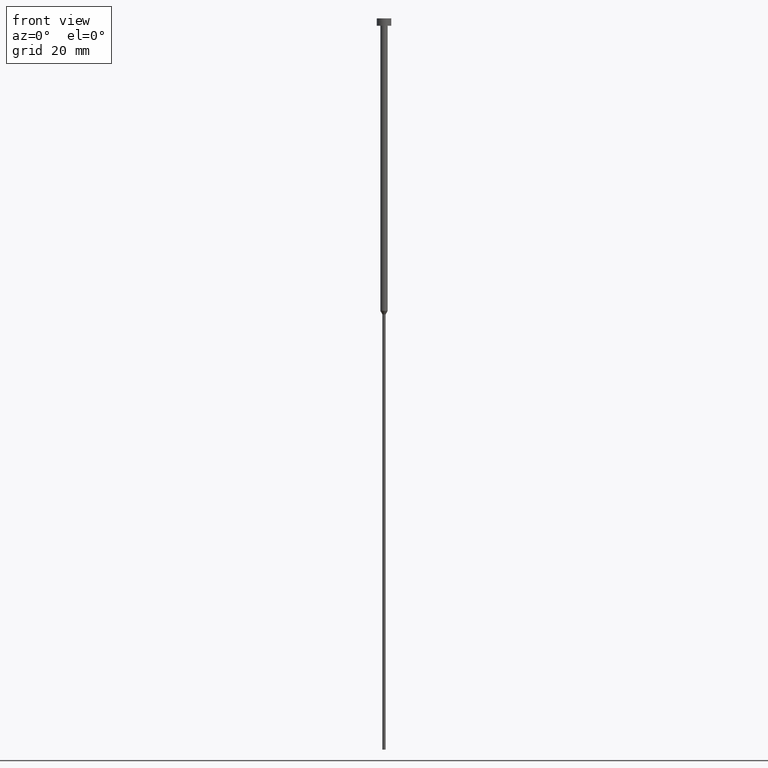
[diagram: clean part render]
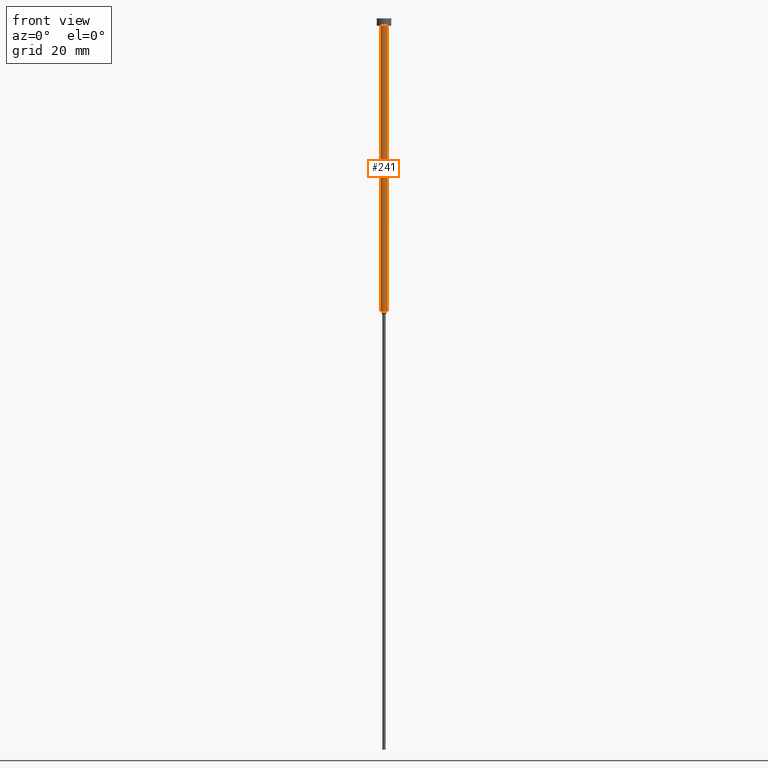
[diagram: same view with one face highlighted and labeled with its STEP entity id]
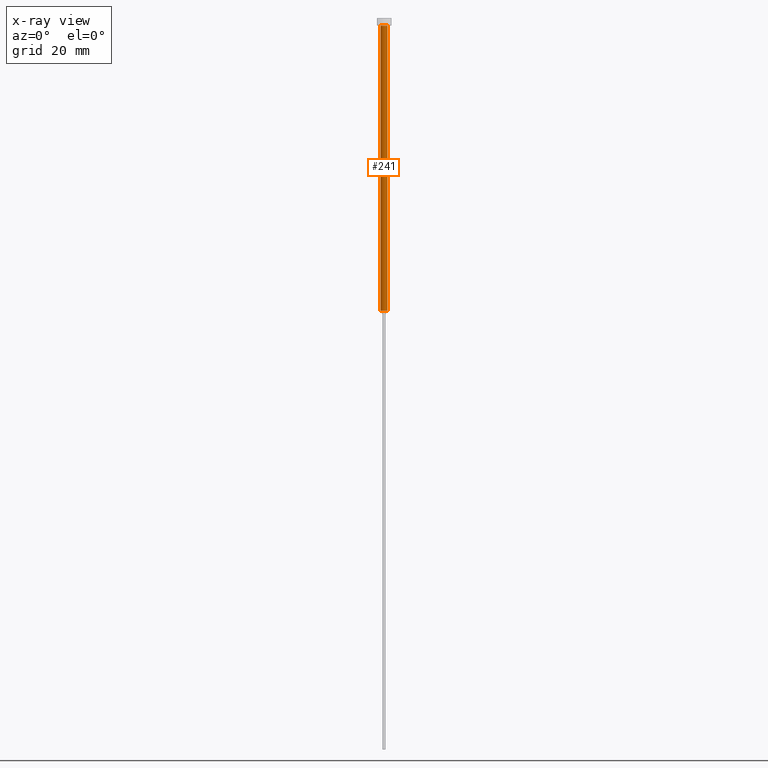
[diagram: x-ray of the same camera — body ghosted, the highlighted face saturated]
A machine part, front view. The second image highlights one B-rep face of the part: STEP entity #241.
The next image is the same camera in x-ray: the body ghosted, the highlighted face saturated — about 0% of this face is hidden behind the body in this view.
In plain terms, the highlighted cylindrical surface (edge-blend (fillet) strip) has radius 1 mm, axis along (-0, -0, 1).
Its self-contained STEP definition (entity closure, byte-faithful):
#2 = DIRECTION ( 'NONE',  ( -0.000000000000000000, -0.000000000000000000, 1.000000000000000000 ) ) ;
#11 = EDGE_CURVE ( 'NONE', #88, #261, #38, .T. ) ;
#15 = DIRECTION ( 'NONE',  ( -0.000000000000000000, -0.000000000000000000, 1.000000000000000000 ) ) ;
#19 = AXIS2_PLACEMENT_3D ( 'NONE', #167, #42, #145 ) ;
#31 = ORIENTED_EDGE ( 'NONE', *, *, #68, .T. ) ;
#38 = LINE ( 'NONE', #115, #67 ) ;
#42 = DIRECTION ( 'NONE',  ( -0.000000000000000000, -0.000000000000000000, 1.000000000000000000 ) ) ;
#43 = CARTESIAN_POINT ( 'NONE',  ( 0.000000000000000000, 0.000000000000000000, -2.000000000000000444 ) ) ;
#44 = EDGE_CURVE ( 'NONE', #61, #209, #252, .T. ) ;
#49 = CARTESIAN_POINT ( 'NONE',  ( 1.000000000000003109, 0.000000000000000000, -80.00000000000000000 ) ) ;
#61 = VERTEX_POINT ( 'NONE', #230 ) ;
#67 = VECTOR ( 'NONE', #2, 1000.000000000000000 ) ;
#68 = EDGE_CURVE ( 'NONE', #61, #88, #310, .T. ) ;
#74 = CARTESIAN_POINT ( 'NONE',  ( 0.000000000000000000, 0.000000000000000000, -80.00000000000000000 ) ) ;
#87 = CIRCLE ( 'NONE', #281, 1.000000000000003553 ) ;
#88 = VERTEX_POINT ( 'NONE', #49 ) ;
#93 = ORIENTED_EDGE ( 'NONE', *, *, #337, .F. ) ;
#115 = CARTESIAN_POINT ( 'NONE',  ( 1.000000000000003331, 0.000000000000000000, 0.000000000000000000 ) ) ;
#119 = VECTOR ( 'NONE', #198, 1000.000000000000000 ) ;
#121 = CARTESIAN_POINT ( 'NONE',  ( -1.000000000000003331, 1.224646799147357151E-16, 0.000000000000000000 ) ) ;
#122 = DIRECTION ( 'NONE',  ( 1.000000000000000000, 0.000000000000000000, 0.000000000000000000 ) ) ;
#145 = DIRECTION ( 'NONE',  ( 1.000000000000000000, 0.000000000000000000, 0.000000000000000000 ) ) ;
#162 = AXIS2_PLACEMENT_3D ( 'NONE', #74, #173, #122 ) ;
#165 = ORIENTED_EDGE ( 'NONE', *, *, #11, .T. ) ;
#167 = CARTESIAN_POINT ( 'NONE',  ( 0.000000000000000000, 0.000000000000000000, 0.000000000000000000 ) ) ;
#173 = DIRECTION ( 'NONE',  ( -0.000000000000000000, -0.000000000000000000, 1.000000000000000000 ) ) ;
#184 = CARTESIAN_POINT ( 'NONE',  ( 1.000000000000003553, 0.000000000000000000, -2.000000000000000444 ) ) ;
#197 = CYLINDRICAL_SURFACE ( 'NONE', #19, 1.000000000000003331 ) ;
#198 = DIRECTION ( 'NONE',  ( -0.000000000000000000, -0.000000000000000000, 1.000000000000000000 ) ) ;
#199 = FACE_OUTER_BOUND ( 'NONE', #353, .T. ) ;
#209 = VERTEX_POINT ( 'NONE', #239 ) ;
#229 = DIRECTION ( 'NONE',  ( 1.000000000000000000, 0.000000000000000000, 0.000000000000000000 ) ) ;
#230 = CARTESIAN_POINT ( 'NONE',  ( -1.000000000000003109, 1.224646799147356905E-16, -80.00000000000000000 ) ) ;
#234 = ORIENTED_EDGE ( 'NONE', *, *, #44, .F. ) ;
#239 = CARTESIAN_POINT ( 'NONE',  ( -1.000000000000003553, 1.224646799147357398E-16, -2.000000000000000444 ) ) ;
#241 = ADVANCED_FACE ( 'NONE', ( #199 ), #197, .T. ) ;
#252 = LINE ( 'NONE', #121, #119 ) ;
#261 = VERTEX_POINT ( 'NONE', #184 ) ;
#281 = AXIS2_PLACEMENT_3D ( 'NONE', #43, #15, #229 ) ;
#310 = CIRCLE ( 'NONE', #162, 1.000000000000003109 ) ;
#337 = EDGE_CURVE ( 'NONE', #209, #261, #87, .T. ) ;
#353 = EDGE_LOOP ( 'NONE', ( #234, #31, #165, #93 ) ) ;